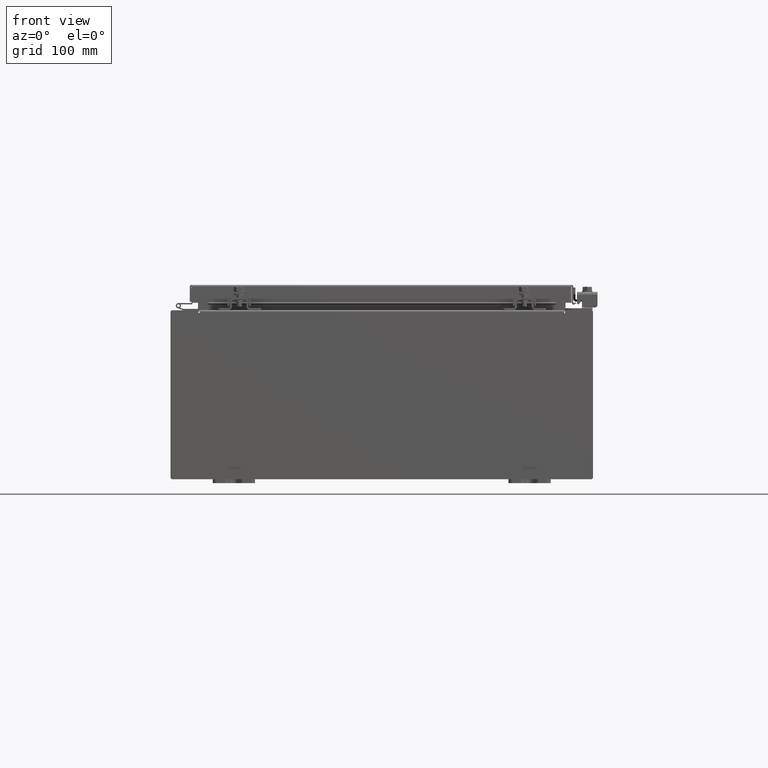
[diagram: clean part render]
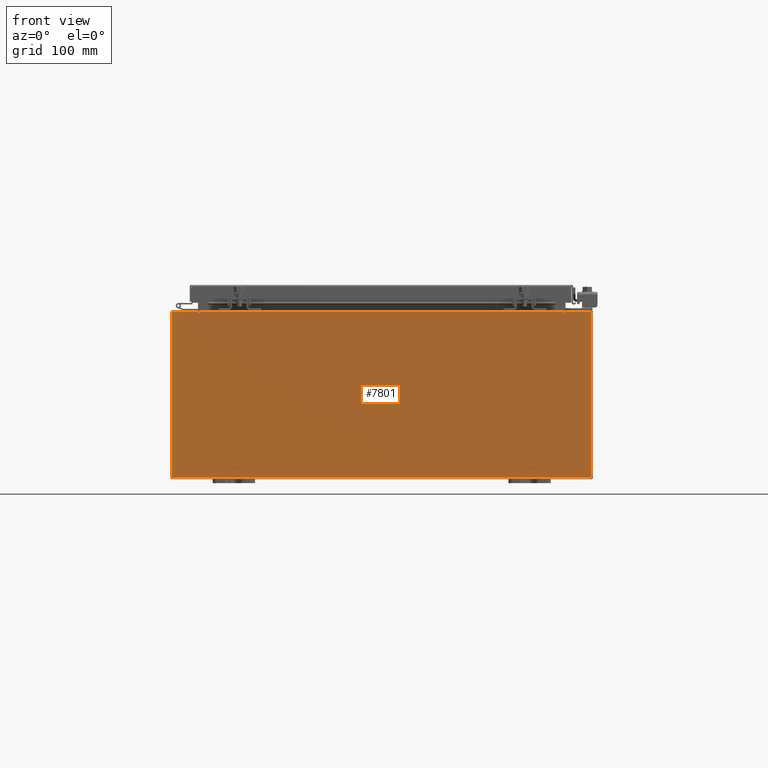
[diagram: same view with one face highlighted and labeled with its STEP entity id]
A machine part, front view. The second image highlights one B-rep face of the part: STEP entity #7801.
In plain terms, the highlighted planar face has unit normal (-0, 1, -0).
Its self-contained STEP definition (entity closure, byte-faithful):
#1060 = VERTEX_POINT ( 'NONE', #6626 ) ;
#1152 = ORIENTED_EDGE ( 'NONE', *, *, #32922, .F. ) ;
#1340 = CIRCLE ( 'NONE', #23209, 0.01867500000000003900 ) ;
#1455 = CARTESIAN_POINT ( 'NONE',  ( -9.925300000000000000, 0.0000000000000000000, 3.925299999999999600 ) ) ;
#1576 = VERTEX_POINT ( 'NONE', #31321 ) ;
#2766 = DIRECTION ( 'NONE',  ( -0.0000000000000000000, 1.000000000000000000, -0.0000000000000000000 ) ) ;
#3901 = VECTOR ( 'NONE', #4608, 39.37007874015748100 ) ;
#4223 = EDGE_CURVE ( 'NONE', #23632, #31512, #30101, .T. ) ;
#4608 = DIRECTION ( 'NONE',  ( 0.0000000000000000000, 0.0000000000000000000, 1.000000000000000000 ) ) ;
#5041 = DIRECTION ( 'NONE',  ( 0.0000000000000000000, 0.0000000000000000000, -1.000000000000000000 ) ) ;
#5359 = CARTESIAN_POINT ( 'NONE',  ( 9.925300000000000000, 0.0000000000000000000, 3.925299999999999600 ) ) ;
#6626 = CARTESIAN_POINT ( 'NONE',  ( 9.925300000000000000, 0.0000000000000000000, -3.925299999999999600 ) ) ;
#6905 = CARTESIAN_POINT ( 'NONE',  ( -9.925300000000000000, 0.0000000000000000000, -3.925299999999999600 ) ) ;
#6980 = CARTESIAN_POINT ( 'NONE',  ( -9.925300000000000000, 0.0000000000000000000, 3.925299999999999600 ) ) ;
#7065 = VECTOR ( 'NONE', #28895, 39.37007874015748100 ) ;
#7116 = VECTOR ( 'NONE', #25440, 39.37007874015748100 ) ;
#7120 = VECTOR ( 'NONE', #32754, 39.37007874015748100 ) ;
#7442 = ORIENTED_EDGE ( 'NONE', *, *, #23061, .T. ) ;
#7494 = VERTEX_POINT ( 'NONE', #11169 ) ;
#7774 = VERTEX_POINT ( 'NONE', #6980 ) ;
#7801 = ADVANCED_FACE ( 'NONE', ( #20193 ), #20414, .F. ) ;
#7849 = CARTESIAN_POINT ( 'NONE',  ( -8.637200000000000000, 1.024442997624098700E-016, 3.912299999999999700 ) ) ;
#8210 = VERTEX_POINT ( 'NONE', #11133 ) ;
#8799 = LINE ( 'NONE', #5359, #26172 ) ;
#10059 = LINE ( 'NONE', #28982, #7065 ) ;
#10139 = CARTESIAN_POINT ( 'NONE',  ( -9.925300000000000000, 0.0000000000000000000, 3.925299999999999600 ) ) ;
#11132 = ORIENTED_EDGE ( 'NONE', *, *, #31733, .F. ) ;
#11133 = CARTESIAN_POINT ( 'NONE',  ( 9.925300000000000000, 0.0000000000000000000, 3.925299999999999600 ) ) ;
#11169 = CARTESIAN_POINT ( 'NONE',  ( 8.674550000000001800, 0.0000000000000000000, 3.925299999999999600 ) ) ;
#11665 = EDGE_CURVE ( 'NONE', #7494, #13455, #10059, .T. ) ;
#11728 = CARTESIAN_POINT ( 'NONE',  ( 8.655875000000000000, 0.0000000000000000000, 3.874949999999999700 ) ) ;
#11761 = ORIENTED_EDGE ( 'NONE', *, *, #26309, .F. ) ;
#12387 = ORIENTED_EDGE ( 'NONE', *, *, #25151, .T. ) ;
#12910 = DIRECTION ( 'NONE',  ( 0.0000000000000000000, 0.0000000000000000000, -1.000000000000000000 ) ) ;
#13051 = CIRCLE ( 'NONE', #22091, 0.01867500000000003900 ) ;
#13090 = LINE ( 'NONE', #27837, #20150 ) ;
#13156 = DIRECTION ( 'NONE',  ( 1.000000000000000000, 0.0000000000000000000, 0.0000000000000000000 ) ) ;
#13167 = ORIENTED_EDGE ( 'NONE', *, *, #32388, .F. ) ;
#13455 = VERTEX_POINT ( 'NONE', #15002 ) ;
#14060 = ORIENTED_EDGE ( 'NONE', *, *, #18205, .T. ) ;
#14175 = CARTESIAN_POINT ( 'NONE',  ( 8.637200000000000000, 0.0000000000000000000, 3.874949999999999700 ) ) ;
#14419 = CARTESIAN_POINT ( 'NONE',  ( -8.637199999999996400, -0.0000000000000000000, 0.0000000000000000000 ) ) ;
#15002 = CARTESIAN_POINT ( 'NONE',  ( 8.674550000000000000, 0.0000000000000000000, 3.874949999999999700 ) ) ;
#15546 = LINE ( 'NONE', #14419, #25989 ) ;
#15687 = VECTOR ( 'NONE', #26921, 39.37007874015748100 ) ;
#15924 = ORIENTED_EDGE ( 'NONE', *, *, #11665, .F. ) ;
#16837 = LINE ( 'NONE', #31314, #15687 ) ;
#17036 = ORIENTED_EDGE ( 'NONE', *, *, #29405, .F. ) ;
#18012 = VERTEX_POINT ( 'NONE', #24336 ) ;
#18205 = EDGE_CURVE ( 'NONE', #1060, #20313, #16837, .T. ) ;
#19583 = CARTESIAN_POINT ( 'NONE',  ( -8.674549999999996400, 0.0000000000000000000, 3.925299999999999600 ) ) ;
#20080 = LINE ( 'NONE', #10139, #31581 ) ;
#20120 = CARTESIAN_POINT ( 'NONE',  ( -8.637199999999996400, 1.024442997624098700E-016, 3.912299999999999700 ) ) ;
#20150 = VECTOR ( 'NONE', #30403, 39.37007874015748100 ) ;
#20193 = FACE_OUTER_BOUND ( 'NONE', #28534, .T. ) ;
#20313 = VERTEX_POINT ( 'NONE', #6905 ) ;
#20414 = PLANE ( 'NONE',  #31252 ) ;
#21561 = DIRECTION ( 'NONE',  ( 0.0000000000000000000, -1.000000000000000000, 0.0000000000000000000 ) ) ;
#21738 = EDGE_CURVE ( 'NONE', #7774, #29447, #20080, .T. ) ;
#22055 = VECTOR ( 'NONE', #32057, 39.37007874015748100 ) ;
#22091 = AXIS2_PLACEMENT_3D ( 'NONE', #32969, #2766, #31334 ) ;
#22277 = ORIENTED_EDGE ( 'NONE', *, *, #31699, .T. ) ;
#22709 = CARTESIAN_POINT ( 'NONE',  ( 8.637200000000000000, 0.0000000000000000000, 3.912299999999999700 ) ) ;
#23061 = EDGE_CURVE ( 'NONE', #7494, #8210, #31593, .T. ) ;
#23209 = AXIS2_PLACEMENT_3D ( 'NONE', #11728, #30996, #26393 ) ;
#23632 = VERTEX_POINT ( 'NONE', #20120 ) ;
#24336 = CARTESIAN_POINT ( 'NONE',  ( -8.674549999999996400, 0.0000000000000000000, 3.874949999999999700 ) ) ;
#25037 = VERTEX_POINT ( 'NONE', #14175 ) ;
#25132 = LINE ( 'NONE', #1455, #7120 ) ;
#25151 = EDGE_CURVE ( 'NONE', #8210, #1060, #8799, .T. ) ;
#25440 = DIRECTION ( 'NONE',  ( 1.000000000000000000, 0.0000000000000000000, 0.0000000000000000000 ) ) ;
#25989 = VECTOR ( 'NONE', #12910, 39.37007874015748100 ) ;
#26172 = VECTOR ( 'NONE', #5041, 39.37007874015748100 ) ;
#26309 = EDGE_CURVE ( 'NONE', #13455, #25037, #1340, .T. ) ;
#26393 = DIRECTION ( 'NONE',  ( 0.0000000000000000000, 0.0000000000000000000, -1.000000000000000000 ) ) ;
#26921 = DIRECTION ( 'NONE',  ( -1.000000000000000000, -0.0000000000000000000, -0.0000000000000000000 ) ) ;
#26970 = ORIENTED_EDGE ( 'NONE', *, *, #21738, .T. ) ;
#27109 = ORIENTED_EDGE ( 'NONE', *, *, #4223, .T. ) ;
#27262 = CARTESIAN_POINT ( 'NONE',  ( -9.925300000000000000, 0.0000000000000000000, 3.925299999999999600 ) ) ;
#27499 = LINE ( 'NONE', #27777, #3901 ) ;
#27777 = CARTESIAN_POINT ( 'NONE',  ( -8.674549999999996400, -0.0000000000000000000, 0.0000000000000000000 ) ) ;
#27837 = CARTESIAN_POINT ( 'NONE',  ( 8.637200000000000000, 0.0000000000000000000, 0.0000000000000000000 ) ) ;
#28534 = EDGE_LOOP ( 'NONE', ( #17036, #11132, #13167, #27109, #1152, #11761, #15924, #7442, #12387, #14060, #22277, #26970 ) ) ;
#28895 = DIRECTION ( 'NONE',  ( -6.510859170600007400E-014, 0.0000000000000000000, -1.000000000000000000 ) ) ;
#28982 = CARTESIAN_POINT ( 'NONE',  ( 8.674549999999747700, -0.0000000000000000000, -5.647877341832665300E-013 ) ) ;
#29273 = CARTESIAN_POINT ( 'NONE',  ( 0.0000000000000000000, 0.0000000000000000000, 0.0000000000000000000 ) ) ;
#29405 = EDGE_CURVE ( 'NONE', #18012, #29447, #27499, .T. ) ;
#29447 = VERTEX_POINT ( 'NONE', #19583 ) ;
#30101 = LINE ( 'NONE', #7849, #7116 ) ;
#30403 = DIRECTION ( 'NONE',  ( 0.0000000000000000000, 0.0000000000000000000, 1.000000000000000000 ) ) ;
#30420 = DIRECTION ( 'NONE',  ( 0.0000000000000000000, -0.0000000000000000000, -1.000000000000000000 ) ) ;
#30996 = DIRECTION ( 'NONE',  ( -0.0000000000000000000, 1.000000000000000000, -0.0000000000000000000 ) ) ;
#31252 = AXIS2_PLACEMENT_3D ( 'NONE', #29273, #21561, #30420 ) ;
#31314 = CARTESIAN_POINT ( 'NONE',  ( -9.925300000000000000, 0.0000000000000000000, -3.925299999999999600 ) ) ;
#31321 = CARTESIAN_POINT ( 'NONE',  ( -8.637199999999996400, -0.0000000000000000000, 3.874949999999999700 ) ) ;
#31334 = DIRECTION ( 'NONE',  ( 0.0000000000000000000, 0.0000000000000000000, -1.000000000000000000 ) ) ;
#31512 = VERTEX_POINT ( 'NONE', #22709 ) ;
#31581 = VECTOR ( 'NONE', #13156, 39.37007874015748100 ) ;
#31593 = LINE ( 'NONE', #27262, #22055 ) ;
#31699 = EDGE_CURVE ( 'NONE', #20313, #7774, #25132, .T. ) ;
#31733 = EDGE_CURVE ( 'NONE', #1576, #18012, #13051, .T. ) ;
#32057 = DIRECTION ( 'NONE',  ( 1.000000000000000000, 0.0000000000000000000, 0.0000000000000000000 ) ) ;
#32388 = EDGE_CURVE ( 'NONE', #23632, #1576, #15546, .T. ) ;
#32754 = DIRECTION ( 'NONE',  ( -0.0000000000000000000, -0.0000000000000000000, 1.000000000000000000 ) ) ;
#32922 = EDGE_CURVE ( 'NONE', #25037, #31512, #13090, .T. ) ;
#32969 = CARTESIAN_POINT ( 'NONE',  ( -8.655874999999996400, 0.0000000000000000000, 3.874949999999999700 ) ) ;